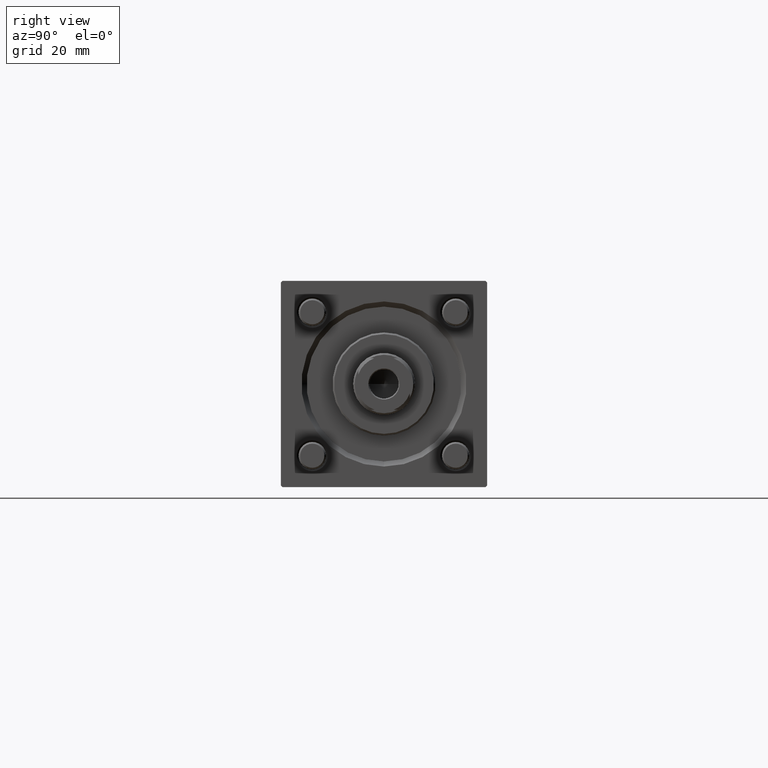
[diagram: clean part render]
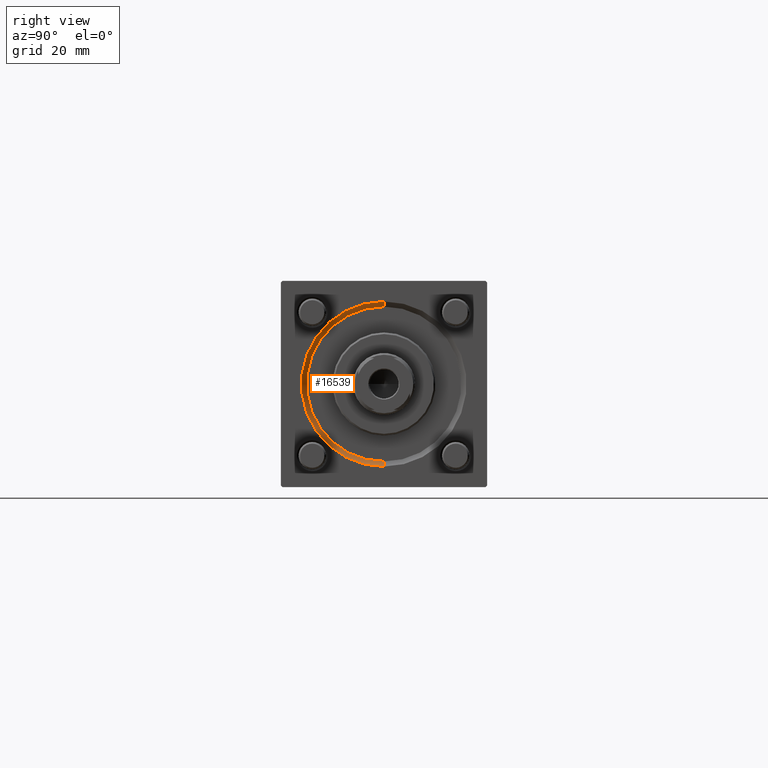
[diagram: same view with one face highlighted and labeled with its STEP entity id]
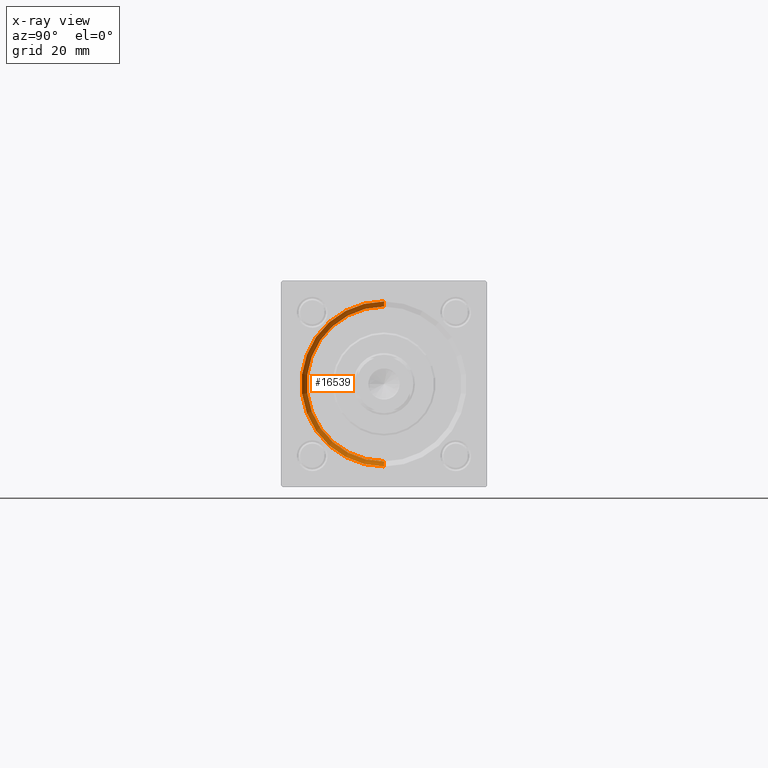
[diagram: x-ray of the same camera — body ghosted, the highlighted face saturated]
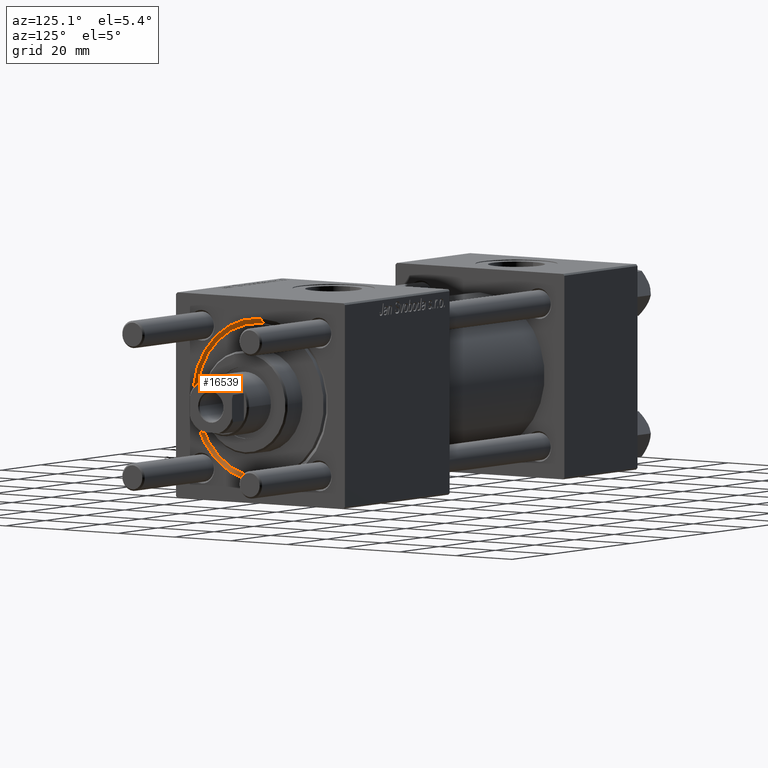
[diagram: same view with one face highlighted and labeled with its STEP entity id]
A machine part, right view. The second image highlights one B-rep face of the part: STEP entity #16539.
The next image is the same camera in x-ray: the body ghosted, the highlighted face saturated — about 0% of this face is hidden behind the body in this view.
A second angle (auxiliary view) of the same face is appended — the face is thin or edge-on in the first view.
In plain terms, the highlighted conical surface has half-angle 45 deg.
Its self-contained STEP definition (entity closure, byte-faithful):
#486 = FACE_OUTER_BOUND ( 'NONE', #56507, .T. ) ;
#3232 = CIRCLE ( 'NONE', #35388, 22.50000000000000355 ) ;
#5703 = CARTESIAN_POINT ( 'NONE',  ( 146.4999999999999432, 0.000000000000000000, 0.000000000000000000 ) ) ;
#7249 = VERTEX_POINT ( 'NONE', #31854 ) ;
#7429 = VERTEX_POINT ( 'NONE', #9391 ) ;
#8945 = CARTESIAN_POINT ( 'NONE',  ( 146.4999999999999432, 2.755455298081545172E-15, 22.50000000000000355 ) ) ;
#9391 = CARTESIAN_POINT ( 'NONE',  ( 146.4999999999999432, 0.000000000000000000, -22.50000000000000355 ) ) ;
#13441 = DIRECTION ( 'NONE',  ( 0.000000000000000000, 0.000000000000000000, -1.000000000000000000 ) ) ;
#14619 = DIRECTION ( 'NONE',  ( 0.000000000000000000, 0.000000000000000000, 1.000000000000000000 ) ) ;
#16413 = CARTESIAN_POINT ( 'NONE',  ( 148.0000000000000000, 0.000000000000000000, 0.000000000000000000 ) ) ;
#16539 = ADVANCED_FACE ( 'NONE', ( #486 ), #42552, .F. ) ;
#16597 = CARTESIAN_POINT ( 'NONE',  ( 146.4999999999999432, 0.000000000000000000, -22.50000000000000355 ) ) ;
#19652 = AXIS2_PLACEMENT_3D ( 'NONE', #16413, #34235, #37399 ) ;
#21745 = LINE ( 'NONE', #16597, #35925 ) ;
#22924 = DIRECTION ( 'NONE',  ( 1.000000000000000000, 0.000000000000000000, 0.000000000000000000 ) ) ;
#23335 = CARTESIAN_POINT ( 'NONE',  ( 148.0000000000000000, 2.939152317953652628E-15, 24.00000000000003908 ) ) ;
#23461 = EDGE_CURVE ( 'NONE', #7249, #7429, #3232, .T. ) ;
#24164 = EDGE_CURVE ( 'NONE', #56455, #55260, #43526, .T. ) ;
#26703 = ORIENTED_EDGE ( 'NONE', *, *, #23461, .F. ) ;
#27053 = LINE ( 'NONE', #8945, #53842 ) ;
#27122 = CARTESIAN_POINT ( 'NONE',  ( 148.0000000000000000, 0.000000000000000000, -24.00000000000003908 ) ) ;
#31854 = CARTESIAN_POINT ( 'NONE',  ( 146.4999999999999432, 2.755455298081545172E-15, 22.50000000000000355 ) ) ;
#32393 = ORIENTED_EDGE ( 'NONE', *, *, #33143, .T. ) ;
#33143 = EDGE_CURVE ( 'NONE', #7249, #55260, #27053, .T. ) ;
#33610 = ORIENTED_EDGE ( 'NONE', *, *, #24164, .F. ) ;
#34235 = DIRECTION ( 'NONE',  ( -1.000000000000000000, 0.000000000000000000, -0.000000000000000000 ) ) ;
#34973 = DIRECTION ( 'NONE',  ( 0.7071067811865524577, 0.000000000000000000, -0.7071067811865426878 ) ) ;
#35388 = AXIS2_PLACEMENT_3D ( 'NONE', #5703, #53964, #14619 ) ;
#35689 = DIRECTION ( 'NONE',  ( 0.7071067811865524577, 8.659560562354874926E-17, 0.7071067811865426878 ) ) ;
#35925 = VECTOR ( 'NONE', #34973, 1000.000000000000000 ) ;
#37399 = DIRECTION ( 'NONE',  ( 0.000000000000000000, 0.000000000000000000, 1.000000000000000000 ) ) ;
#41925 = ORIENTED_EDGE ( 'NONE', *, *, #46616, .F. ) ;
#42552 = CONICAL_SURFACE ( 'NONE', #50768, 22.50000000000000355, 0.7853981633974415066 ) ;
#43526 = CIRCLE ( 'NONE', #19652, 24.00000000000003908 ) ;
#45303 = CARTESIAN_POINT ( 'NONE',  ( 146.4999999999999432, 0.000000000000000000, 0.000000000000000000 ) ) ;
#46616 = EDGE_CURVE ( 'NONE', #7429, #56455, #21745, .T. ) ;
#50768 = AXIS2_PLACEMENT_3D ( 'NONE', #45303, #22924, #13441 ) ;
#53842 = VECTOR ( 'NONE', #35689, 1000.000000000000000 ) ;
#53964 = DIRECTION ( 'NONE',  ( 1.000000000000000000, 0.000000000000000000, 0.000000000000000000 ) ) ;
#55260 = VERTEX_POINT ( 'NONE', #23335 ) ;
#56455 = VERTEX_POINT ( 'NONE', #27122 ) ;
#56507 = EDGE_LOOP ( 'NONE', ( #26703, #32393, #33610, #41925 ) ) ;